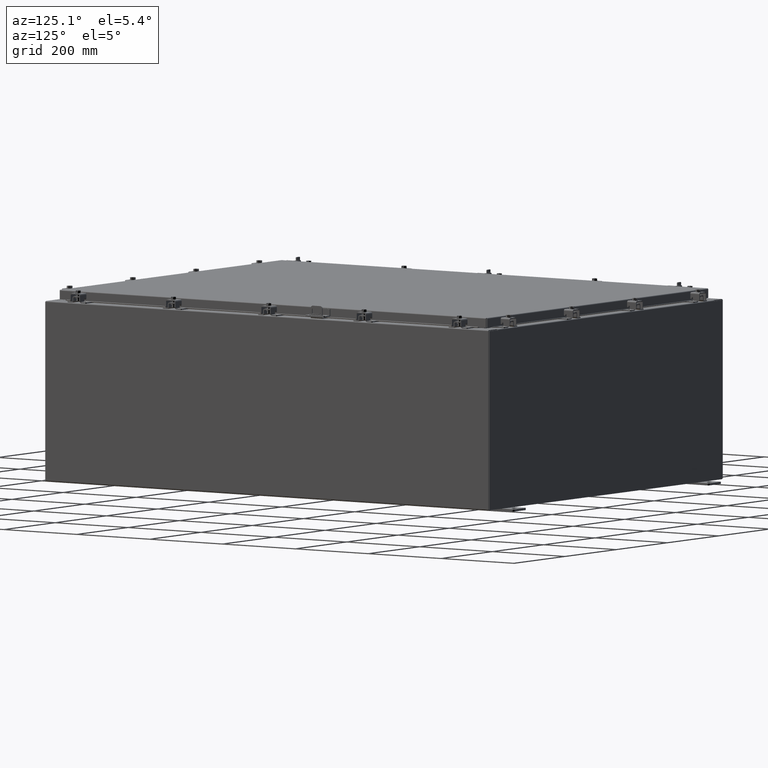
[diagram: clean part render]
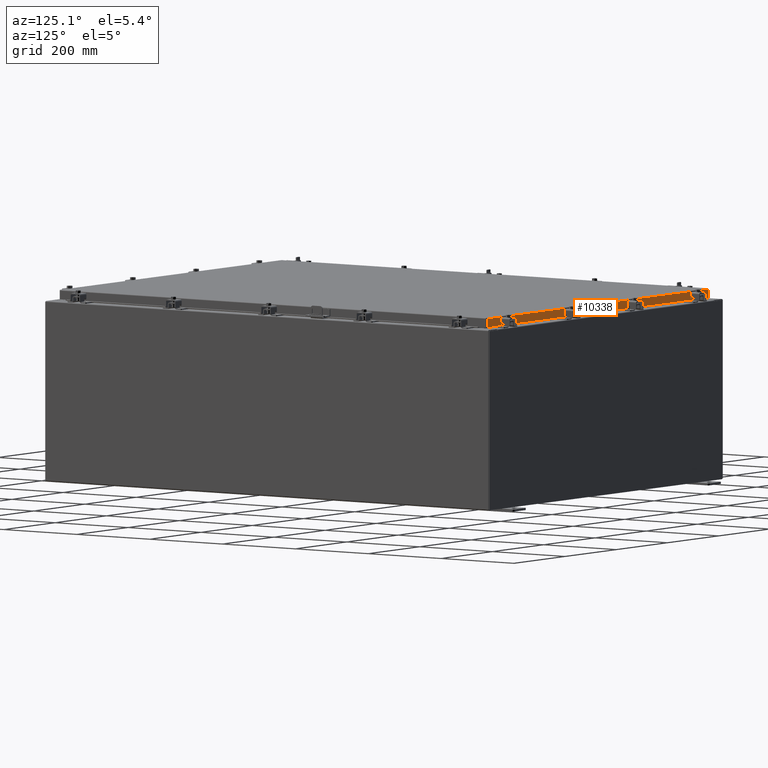
[diagram: same view with one face highlighted and labeled with its STEP entity id]
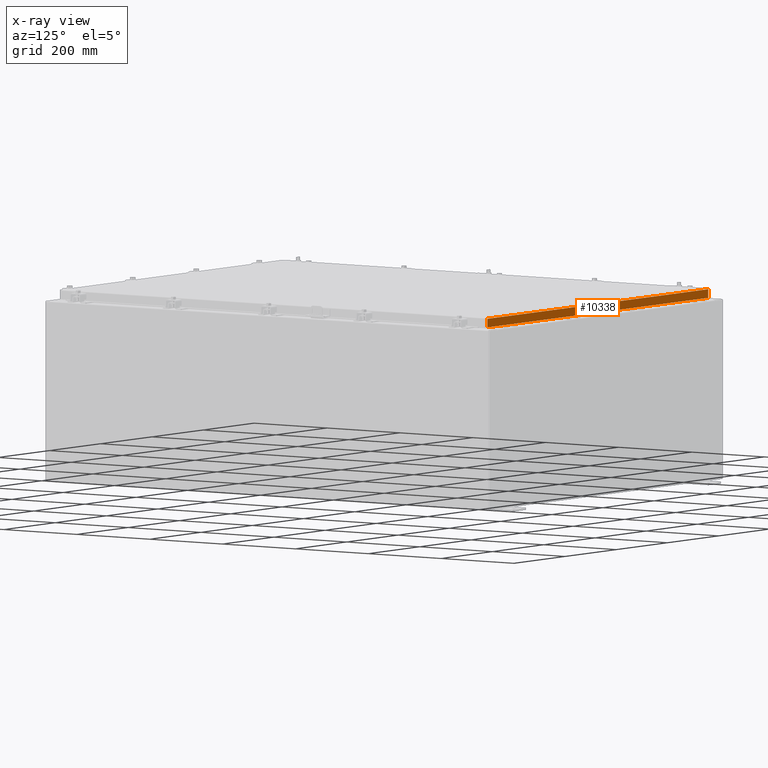
[diagram: x-ray of the same camera — body ghosted, the highlighted face saturated]
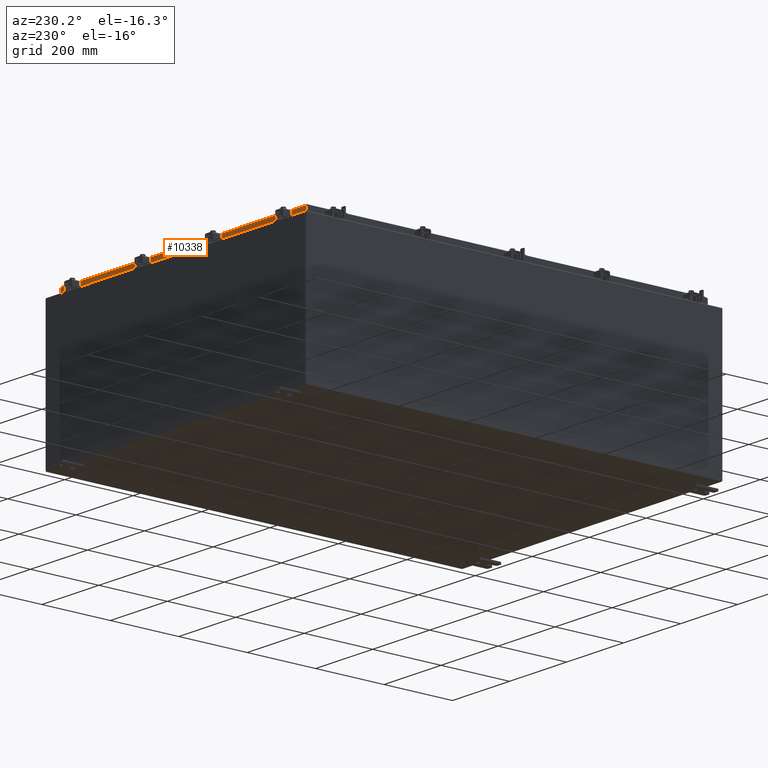
[diagram: same view with one face highlighted and labeled with its STEP entity id]
A machine part, auxiliary view. The second image highlights one B-rep face of the part: STEP entity #10338.
The next image is the same camera in x-ray: the body ghosted, the highlighted face saturated — about 0% of this face is hidden behind the body in this view.
A second angle (auxiliary view) of the same face is appended — the face is thin or edge-on in the first view.
In plain terms, the highlighted planar face has unit normal (0, -1, -0).
Its self-contained STEP definition (entity closure, byte-faithful):
#59 = VERTEX_POINT ( 'NONE', #14499 ) ;
#328 = CARTESIAN_POINT ( 'NONE',  ( -17.07799999999999900, 23.09399999999999400, -0.08769999999999589200 ) ) ;
#378 = CARTESIAN_POINT ( 'NONE',  ( 16.98915786437627100, 23.09399999999999400, -0.08769999999999589200 ) ) ;
#409 = VECTOR ( 'NONE', #6596, 39.37007874015748100 ) ;
#983 = LINE ( 'NONE', #19649, #11492 ) ;
#1658 = VECTOR ( 'NONE', #20917, 39.37007874015748100 ) ;
#2672 = PLANE ( 'NONE',  #20997 ) ;
#2905 = CARTESIAN_POINT ( 'NONE',  ( -17.07799999999999900, 23.09400000000000100, -0.8500000000000043100 ) ) ;
#3155 = ORIENTED_EDGE ( 'NONE', *, *, #22915, .F. ) ;
#3289 = ORIENTED_EDGE ( 'NONE', *, *, #18030, .F. ) ;
#3676 = FACE_OUTER_BOUND ( 'NONE', #21394, .T. ) ;
#4835 = ORIENTED_EDGE ( 'NONE', *, *, #23821, .F. ) ;
#4992 = DIRECTION ( 'NONE',  ( 1.000000000000000000, -0.0000000000000000000, 1.239713195391617400E-016 ) ) ;
#5182 = CARTESIAN_POINT ( 'NONE',  ( -16.98915786437626700, 23.09400000000000100, -0.8500000000000043100 ) ) ;
#5533 = LINE ( 'NONE', #328, #409 ) ;
#5548 = VERTEX_POINT ( 'NONE', #378 ) ;
#6173 = CARTESIAN_POINT ( 'NONE',  ( 16.98915786437627100, 23.09399999999999400, 1.289432253009532300E-013 ) ) ;
#6193 = CARTESIAN_POINT ( 'NONE',  ( 16.98915786437627100, 23.09400000000000100, -0.8499999999999999800 ) ) ;
#6596 = DIRECTION ( 'NONE',  ( -1.000000000000000000, -6.989207801985677300E-031, -3.922586267643528000E-045 ) ) ;
#7764 = CARTESIAN_POINT ( 'NONE',  ( -16.23915786437625600, 23.09399999999999400, -0.8500000000000043100 ) ) ;
#8278 = VECTOR ( 'NONE', #18892, 39.37007874015748100 ) ;
#8994 = CARTESIAN_POINT ( 'NONE',  ( 0.0000000000000000000, 23.09399999999999400, 1.289432253009532300E-013 ) ) ;
#10184 = VERTEX_POINT ( 'NONE', #7764 ) ;
#10338 = ADVANCED_FACE ( 'NONE', ( #3676 ), #2672, .F. ) ;
#10818 = VERTEX_POINT ( 'NONE', #6193 ) ;
#11133 = DIRECTION ( 'NONE',  ( 0.0000000000000000000, 5.637761885544689500E-015, -1.000000000000000000 ) ) ;
#11205 = VERTEX_POINT ( 'NONE', #5182 ) ;
#11492 = VECTOR ( 'NONE', #21763, 39.37007874015748100 ) ;
#11885 = VECTOR ( 'NONE', #4992, 39.37007874015748100 ) ;
#12086 = VECTOR ( 'NONE', #26720, 39.37007874015748100 ) ;
#12533 = LINE ( 'NONE', #2905, #11885 ) ;
#12799 = EDGE_CURVE ( 'NONE', #59, #11205, #983, .T. ) ;
#13862 = EDGE_CURVE ( 'NONE', #23362, #10818, #24675, .T. ) ;
#13912 = LINE ( 'NONE', #6173, #8278 ) ;
#14395 = CARTESIAN_POINT ( 'NONE',  ( -16.23915786437626000, 23.09399999999999400, -0.8500000000000043100 ) ) ;
#14499 = CARTESIAN_POINT ( 'NONE',  ( -16.98915786437626700, 23.09399999999999400, -0.08769999999999589200 ) ) ;
#15724 = ORIENTED_EDGE ( 'NONE', *, *, #13862, .F. ) ;
#18030 = EDGE_CURVE ( 'NONE', #11205, #10184, #12533, .T. ) ;
#18346 = CARTESIAN_POINT ( 'NONE',  ( -17.07799999999999900, 23.09400000000000100, -0.8500000000000043100 ) ) ;
#18506 = LINE ( 'NONE', #14395, #1658 ) ;
#18892 = DIRECTION ( 'NONE',  ( 0.0000000000000000000, 5.637761885544689500E-015, -1.000000000000000000 ) ) ;
#19649 = CARTESIAN_POINT ( 'NONE',  ( -16.98915786437626700, 23.09399999999999400, -0.07470000000000015500 ) ) ;
#20068 = EDGE_CURVE ( 'NONE', #5548, #10818, #13912, .T. ) ;
#20085 = CARTESIAN_POINT ( 'NONE',  ( 16.23915786437626400, 23.09399999999999400, -0.8500000000000043100 ) ) ;
#20917 = DIRECTION ( 'NONE',  ( 1.000000000000000000, -0.0000000000000000000, -0.0000000000000000000 ) ) ;
#20997 = AXIS2_PLACEMENT_3D ( 'NONE', #8994, #23812, #11133 ) ;
#21105 = ORIENTED_EDGE ( 'NONE', *, *, #12799, .F. ) ;
#21394 = EDGE_LOOP ( 'NONE', ( #4835, #24610, #15724, #3155, #3289, #21105 ) ) ;
#21763 = DIRECTION ( 'NONE',  ( -0.0000000000000000000, 5.637761885544689500E-015, -1.000000000000000000 ) ) ;
#22915 = EDGE_CURVE ( 'NONE', #10184, #23362, #18506, .T. ) ;
#23362 = VERTEX_POINT ( 'NONE', #20085 ) ;
#23812 = DIRECTION ( 'NONE',  ( 6.989207801985676400E-031, -1.000000000000000000, -5.637761885544689500E-015 ) ) ;
#23821 = EDGE_CURVE ( 'NONE', #5548, #59, #5533, .T. ) ;
#24610 = ORIENTED_EDGE ( 'NONE', *, *, #20068, .T. ) ;
#24675 = LINE ( 'NONE', #18346, #12086 ) ;
#26720 = DIRECTION ( 'NONE',  ( 1.000000000000000000, -0.0000000000000000000, 1.239713195391617400E-016 ) ) ;